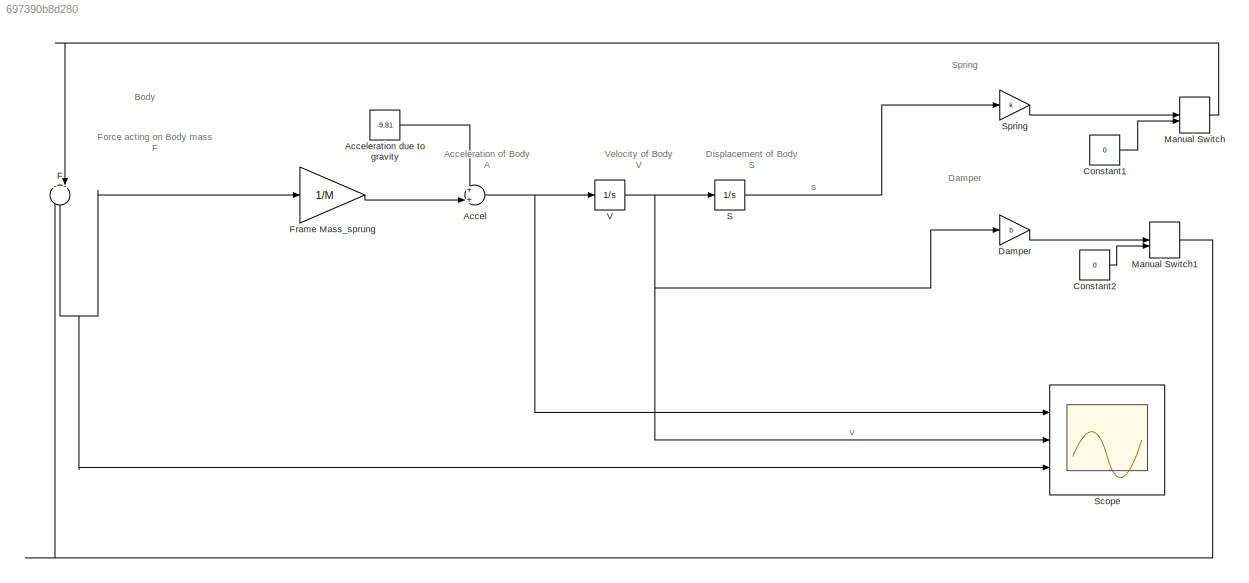
MODEL slx_697390b8d280
KIND model
CONFIG AbsTol = auto
CONFIG FixedStep = auto
CONFIG MaxStep = auto
CONFIG MinStep = auto
CONFIG RelTol = 1e-3
CONFIG SampleTimeConstraint = Unconstrained
CONFIG Solver = VariableStepAuto
CONFIG SolverMode = Auto
CONFIG SolverName = VariableStepAuto
CONFIG StartTime = 0.0
CONFIG StopTime = 1000
BLOCK [Sum] Accel
  IconShape = round
  InputSameDT = off
  Inputs = ++|
  OutDataTypeStr = Inherit: Inherit via internal rule
  Ports = [2, 1]
  SaturateOnIntegerOverflow = off
BLOCK [Constant] Acceleration due to gravity
  Value = -9.81
BLOCK [Constant] Constant1
  Value = 0
BLOCK [Constant] Constant2
  Value = 0
BLOCK [Gain] Damper
  Gain = b
  OutDataTypeStr = Inherit: Inherit via internal rule
  ParamDataTypeStr = Inherit: Inherit via internal rule
  SaturateOnIntegerOverflow = off
BLOCK [Sum] F
  IconShape = round
  InputSameDT = off
  Inputs = --|
  OutDataTypeStr = Inherit: Inherit via internal rule
  Ports = [2, 1]
  SaturateOnIntegerOverflow = off
BLOCK [Gain] Frame Mass_sprung
  Gain = 1/M
  OutDataTypeStr = Inherit: Inherit via internal rule
  ParamDataTypeStr = Inherit: Inherit via internal rule
  SaturateOnIntegerOverflow = off
BLOCK [ManualSwitch] Manual Switch
BLOCK [ManualSwitch] Manual Switch1
BLOCK [Integrator] S
  Ports = [1, 1]
BLOCK [Scope] Scope
  NumInputPorts = 3
  Ports = [3]
  ScopeSpecificationString = Simulink.scopes.TimeScopeBlockCfg('CurrentConfiguration', extmgr.ConfigurationSet(extmgr.Configuration('Core','General UI',true),extmgr.Configuration('Core','Source UI',true),extmgr.Configuration('Sources','WiredSimulink',true),extmgr.Configuration('Visuals','Time Domain',true,'SerializedDisplays',{struct('MinYLimReal','-11.03639','MaxYLimReal','1.22752','YLabelReal','','MinYLimMag','0.00000','Max...<+4889ch>
BLOCK [Gain] Spring
  Gain = k
  OutDataTypeStr = Inherit: Inherit via internal rule
  ParamDataTypeStr = Inherit: Inherit via internal rule
  SaturateOnIntegerOverflow = off
BLOCK [Integrator] V
  Ports = [1, 1]
ANNOTATION (root): Acceleration of Body A
ANNOTATION (root): Body
ANNOTATION (root): Damper
ANNOTATION (root): Displacement of Body S
ANNOTATION (root): Force acting on Body mass F
ANNOTATION (root): Spring
ANNOTATION (root): Velocity of Body V
NET Accel:1 -> Scope:1, V:1
LINE Acceleration due to gravity:1 -> Accel:1
LINE Constant1:1 -> Manual Switch:2
LINE Constant2:1 -> Manual Switch1:2
LINE Damper:1 -> Manual Switch1:1
NET F:1 -> Frame Mass_sprung:1, Scope:3
LINE Frame Mass_sprung:1 -> Accel:2
LINE Manual Switch1:1 -> F:1
LINE Manual Switch:1 -> F:2
LINE S:1 -> Spring:1
LINE Spring:1 -> Manual Switch:1
NET V:1 -> Damper:1, S:1, Scope:2
note: NET lines group one-source signal fan-out (src -> all destinations, sorted); 1:1 wires keep LINE
